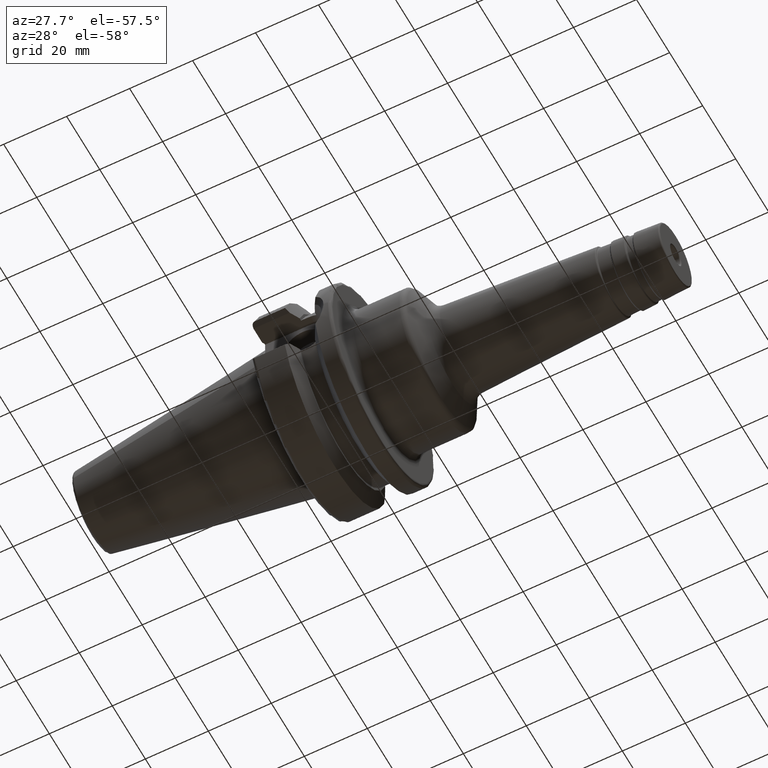
[diagram: clean part render]
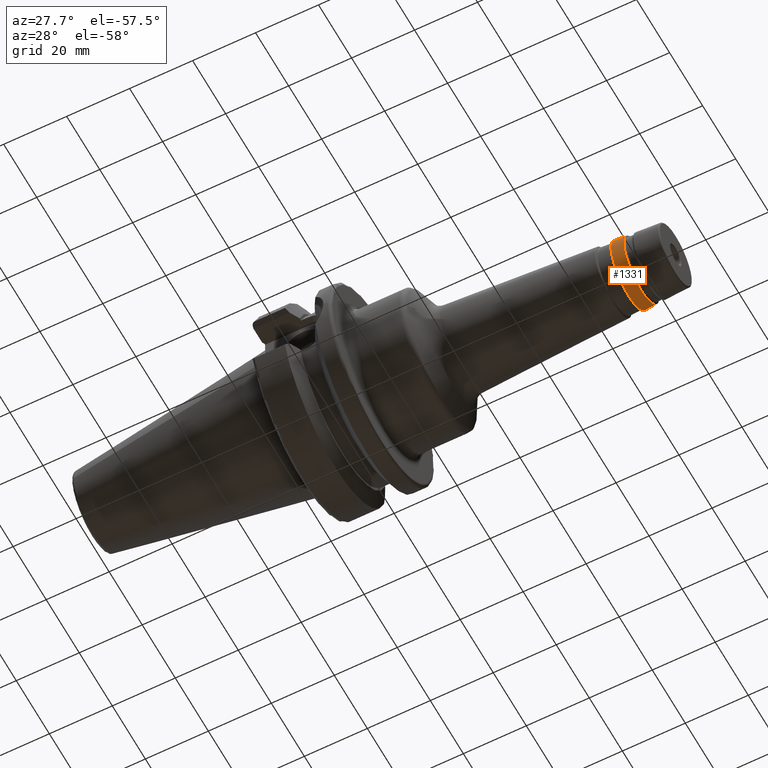
[diagram: same view with one face highlighted and labeled with its STEP entity id]
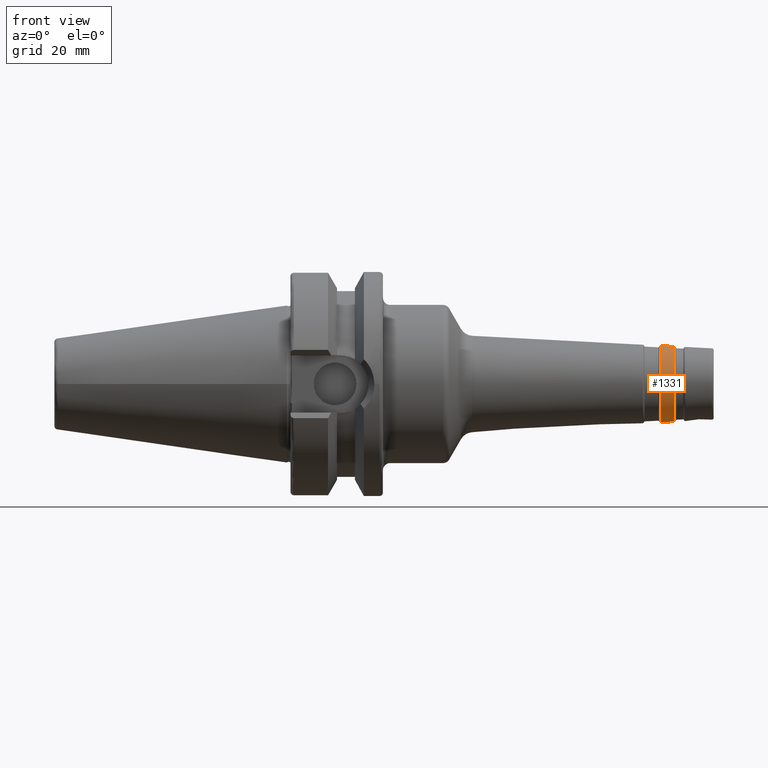
[diagram: same view with one face highlighted and labeled with its STEP entity id]
A machine part, auxiliary view. The second image highlights one B-rep face of the part: STEP entity #1331.
A second angle (front view) of the same face is appended — the face is thin or edge-on in the first view.
In plain terms, the highlighted conical surface has half-angle 3 deg.
Its self-contained STEP definition (entity closure, byte-faithful):
#64=CONICAL_SURFACE('',#1469,10.6796065213774,0.0523598775598298);
#142=FACE_OUTER_BOUND('',#230,.T.);
#230=EDGE_LOOP('',(#950,#951,#952,#953));
#314=LINE('',#2133,#387);
#387=VECTOR('',#1715,10.6796065213774);
#477=CIRCLE('',#1467,10.7832518514021);
#479=CIRCLE('',#1470,10.5759611913527);
#571=VERTEX_POINT('',#2127);
#572=VERTEX_POINT('',#2131);
#712=EDGE_CURVE('',#571,#571,#477,.T.);
#714=EDGE_CURVE('',#572,#572,#479,.T.);
#715=EDGE_CURVE('',#572,#571,#314,.T.);
#950=ORIENTED_EDGE('',*,*,#714,.F.);
#951=ORIENTED_EDGE('',*,*,#715,.T.);
#952=ORIENTED_EDGE('',*,*,#712,.F.);
#953=ORIENTED_EDGE('',*,*,#715,.F.);
#1331=ADVANCED_FACE('',(#142),#64,.T.);
#1467=AXIS2_PLACEMENT_3D('',#2128,#1707,#1708);
#1469=AXIS2_PLACEMENT_3D('',#2130,#1711,#1712);
#1470=AXIS2_PLACEMENT_3D('',#2132,#1713,#1714);
#1707=DIRECTION('center_axis',(-1.,0.,0.));
#1708=DIRECTION('ref_axis',(0.,2.28612886241279E-32,1.));
#1711=DIRECTION('center_axis',(-1.,0.,0.));
#1712=DIRECTION('ref_axis',(0.,0.,-1.));
#1713=DIRECTION('center_axis',(1.,0.,0.));
#1714=DIRECTION('ref_axis',(0.,0.,1.));
#1715=DIRECTION('',(-0.998629534754574,-6.4093061293237E-18,0.0523359562429437));
#2127=CARTESIAN_POINT('',(105.05466436248,-1.32056748642194E-15,10.7832518514021));
#2128=CARTESIAN_POINT('Origin',(105.05466436248,-1.32056748642194E-15,0.));
#2130=CARTESIAN_POINT('Origin',(107.032335071726,0.,0.));
#2131=CARTESIAN_POINT('',(109.010005780972,-1.29518170208967E-15,10.5759611913527));
#2132=CARTESIAN_POINT('Origin',(109.010005780972,-1.29518170208967E-15,
0.));
#2133=CARTESIAN_POINT('',(107.032335071726,-1.30787459425581E-15,10.6796065213774));